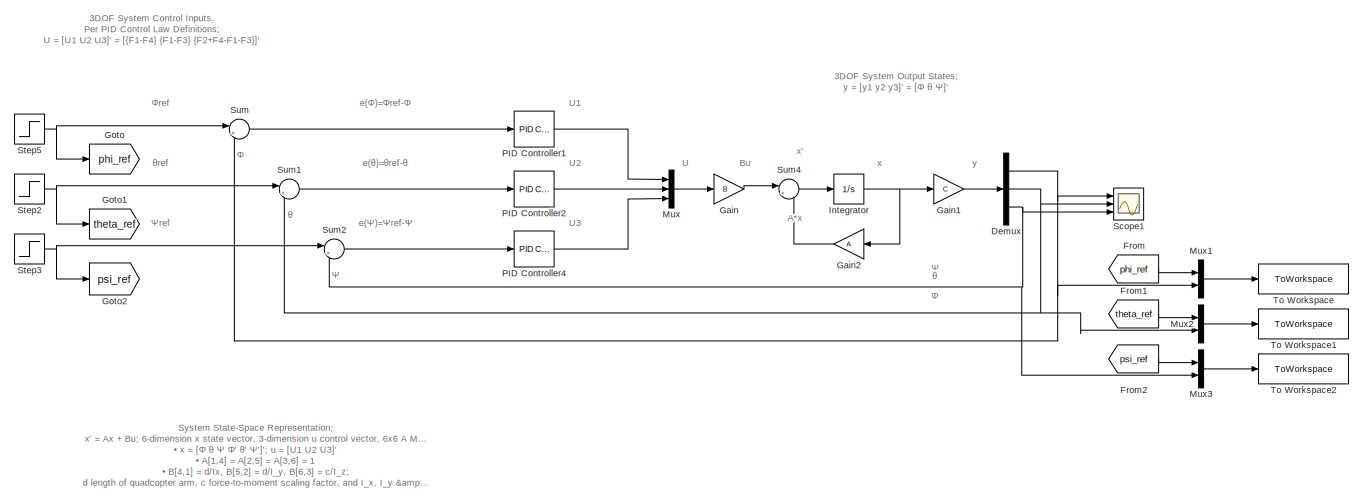
[diagram: root canvas - part 1/2, most of the canvas]
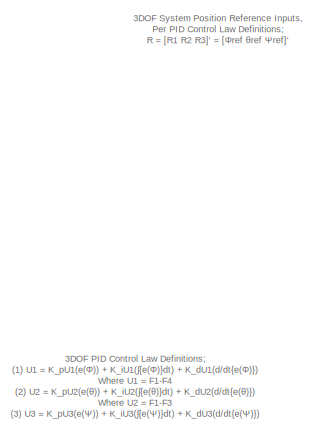
[diagram: root canvas - part 2/2, left side, full height]
MODEL slx_10a1be4357d0
KIND model
CONFIG AbsTol = auto
CONFIG EnableMultiTasking = off
CONFIG FixedStep = auto
CONFIG MaxStep = auto
CONFIG MinStep = auto
CONFIG RelTol = 1e-3
CONFIG SampleTimeConstraint = Unconstrained
CONFIG SolverName = VariableStepAuto
CONFIG StartTime = 0.0
CONFIG StopTime = 10.0
BLOCK [Demux] Demux
  Outputs = 3
  Ports = [1, 3]
BLOCK [From] From
  GotoTag = phi_ref
BLOCK [From] From1
  GotoTag = theta_ref
BLOCK [From] From2
  GotoTag = psi_ref
BLOCK [Gain] Gain
  AttributesFormatString = State-Space B*u
  Gain = B
  Multiplication = Matrix(K*u)
BLOCK [Gain] Gain1
  AttributesFormatString = State-Space C*x
  Gain = C
  Multiplication = Matrix(K*u)
BLOCK [Gain] Gain2
  AttributesFormatString = State-Space A*x
  Gain = A
  Multiplication = Matrix(K*u)
BLOCK [Goto] Goto
  GotoTag = phi_ref
BLOCK [Goto] Goto1
  GotoTag = theta_ref
BLOCK [Goto] Goto2
  GotoTag = psi_ref
BLOCK [Integrator] Integrator
  AttributesFormatString = Extract Current States
  Ports = [1, 1]
BLOCK [Mux] Mux
  DisplayOption = bar
  Inputs = 3
  Ports = [3, 1]
BLOCK [Mux] Mux1
  DisplayOption = bar
  Inputs = 2
  Ports = [2, 1]
BLOCK [Mux] Mux2
  DisplayOption = bar
  Inputs = 2
  Ports = [2, 1]
BLOCK [Mux] Mux3
  DisplayOption = bar
  Inputs = 2
  Ports = [2, 1]
BLOCK [Reference] PID Controller1  REF=slpidlib/PID Controller
  AttributesFormatString = U1 Controller
  Ports = [1, 1]
  SourceBlock = slpidlib/PID Controller
  SourceProductBaseCode = SL
  SourceType = PID 1dof
BLOCK [Reference] PID Controller2  REF=slpidlib/PID Controller
  AttributesFormatString = U2 Controller
  Ports = [1, 1]
  SourceBlock = slpidlib/PID Controller
  SourceProductBaseCode = SL
  SourceType = PID 1dof
BLOCK [Reference] PID Controller4  REF=slpidlib/PID Controller
  AttributesFormatString = U3 Controller
  Ports = [1, 1]
  SourceBlock = slpidlib/PID Controller
  SourceProductBaseCode = SL
  SourceType = PID 1dof
BLOCK [Scope] Scope1
  AttributesFormatString = Quadcopter Euler Angle\nOutputs
  Floating = off
  NumInputPorts = 3
  Ports = [3]
  ScopeSpecificationString = Simulink.scopes.TimeScopeBlockCfg('CurrentConfiguration', extmgr.ConfigurationSet(extmgr.Configuration('Core','General UI',true),extmgr.Configuration('Core','Source UI',true),extmgr.Configuration('Sources','WiredSimulink',true),extmgr.Configuration('Visuals','Time Domain',true,'SerializedDisplays',{struct('MinYLimReal','-0.19113','MaxYLimReal','1.72016','YLabelReal','','MinYLimMag','0.00000','MaxY...<+1776ch>
BLOCK [Step] Step2
  SampleTime = 0
BLOCK [Step] Step3
  SampleTime = 0
BLOCK [Step] Step5
  SampleTime = 0
BLOCK [Sum] Sum
  Inputs = |+-
  Ports = [2, 1]
BLOCK [Sum] Sum1
  Inputs = |+-
  Ports = [2, 1]
BLOCK [Sum] Sum2
  Inputs = |+-
  Ports = [2, 1]
BLOCK [Sum] Sum4
  Inputs = |++
  Ports = [2, 1]
BLOCK [ToWorkspace] To Workspace
  FixptAsFi = on
  MaxDataPoints = inf
  Ports = [1]
  SampleTime = -1
  SaveFormat = Timeseries
  VariableName = phi_err
BLOCK [ToWorkspace] To Workspace1
  FixptAsFi = on
  MaxDataPoints = inf
  Ports = [1]
  SampleTime = -1
  SaveFormat = Timeseries
  VariableName = theta_err
BLOCK [ToWorkspace] To Workspace2
  FixptAsFi = on
  MaxDataPoints = inf
  Ports = [1]
  SampleTime = -1
  SaveFormat = Timeseries
  VariableName = psi_err
ANNOTATION (root): Ψ
ANNOTATION (root): Ψ ref
ANNOTATION (root): Φ
ANNOTATION (root): Φ ref
ANNOTATION (root): θ
ANNOTATION (root): θ ref
ANNOTATION (root): 3DOF PID Control Law Definitions; (1) U1 = K_pU1 ( e(Φ) ) + K_iU1 ( ∫{ e(Φ) }dt) + K_dU1 (d/dt{ e(Φ) }) Where U1 = F1-F4 (2) U2 = K_pU2 ( e(θ) ) + K_iU2 ( ∫{ e(θ) }dt) + K_dU2 (d/dt{ e(θ) }) Where U2 = F1-F3 (3) U3 = K_pU3 ( e( Ψ ) ) + K_iU3 ( ∫{ e( Ψ ) }dt) + K_dU3 (d/dt{ e( Ψ ) }) Where U3 = F2+F4-F1-F3
ANNOTATION (root): 3DOF System Control Inputs, Per PID Control Law Definitions; U = [ U1 U2 U3 ]' = [{F1-F4} {F1-F3} {F2+F4-F1-F3}]'
ANNOTATION (root): 3DOF System Output States; y = [y1 y2 y3]' = [ Φ θ Ψ ]'
ANNOTATION (root): 3DOF System Position Reference Inputs, Per PID Control Law Definitions; R = [R1 R2 R3]' = [ Φ ref θref Ψref ]'
ANNOTATION (root): System State-Space Representation; x' = Ax + Bu; 6-dimension x state vector, 3-dimension u control vector, 6x6 A Matrix, and 6x3 B Matrix • x = [ Φ θ Ψ Φ' θ' Ψ' ]'; u = [ U1 U2 U3 ]' • A[1,4] = A[2,5] = A[3,6] = 1 • B[4,1] = d/Ix, B[5,2] = d/I_y, B[6,3] = c/I_z; d length of quadcopter arm, c force-to-moment scaling factor, and I_x, I_y & I_z moments of inertia along x, y, and z axes respectively. ...<+172ch>
ANNOTATION (root): A*x
ANNOTATION (root): Bu
ANNOTATION (root): U1
ANNOTATION (root): U2
ANNOTATION (root): U3
ANNOTATION (root): U
ANNOTATION (root): e( Ψ )= Ψ ref- Ψ
ANNOTATION (root): e( Φ )= Φ ref- Φ
ANNOTATION (root): e( θ )= θ ref- θ
ANNOTATION (root): x'
ANNOTATION (root): x
ANNOTATION (root): y
NET Demux:1 -> Mux1:2, Scope1:1, Sum:2
NET Demux:2 -> Mux2:2, Scope1:2, Sum1:2
NET Demux:3 -> Mux3:2, Scope1:3, Sum2:2
LINE From1:1 -> Mux2:1
LINE From2:1 -> Mux3:1
LINE From:1 -> Mux1:1
LINE Gain1:1 -> Demux:1
LINE Gain2:1 -> Sum4:2
LINE Gain:1 -> Sum4:1
NET Integrator:1 -> Gain1:1, Gain2:1
LINE Mux1:1 -> To Workspace:1
LINE Mux2:1 -> To Workspace1:1
LINE Mux3:1 -> To Workspace2:1
LINE Mux:1 -> Gain:1
LINE PID Controller1:1 -> Mux:1
LINE PID Controller2:1 -> Mux:2
LINE PID Controller4:1 -> Mux:3
NET Step2:1 -> Goto1:1, Sum1:1
NET Step3:1 -> Goto2:1, Sum2:1
NET Step5:1 -> Goto:1, Sum:1
LINE Sum1:1 -> PID Controller2:1
LINE Sum2:1 -> PID Controller4:1
LINE Sum4:1 -> Integrator:1
LINE Sum:1 -> PID Controller1:1
note: NET lines group one-source signal fan-out (src -> all destinations, sorted); 1:1 wires keep LINE
